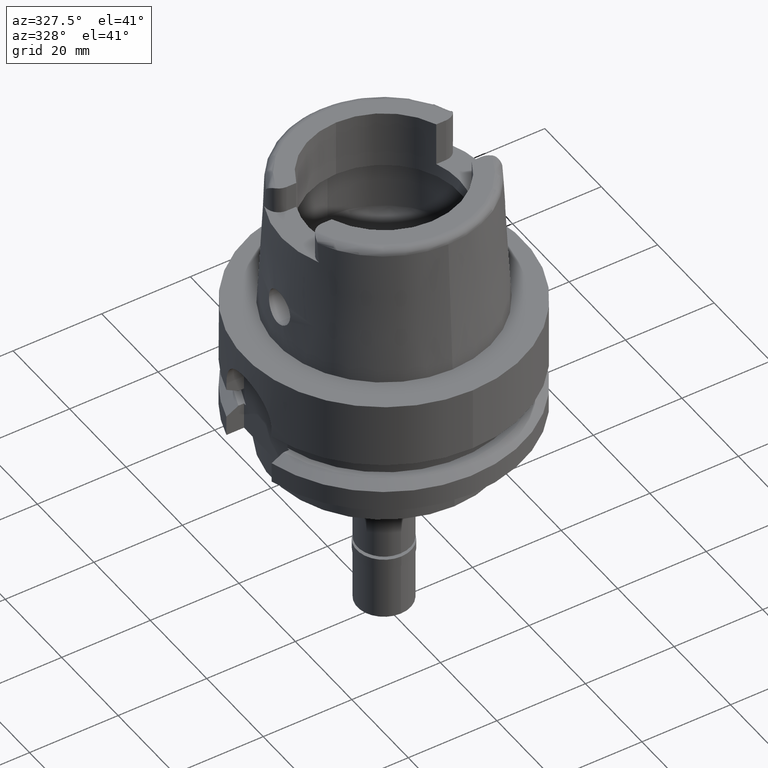
[diagram: clean part render]
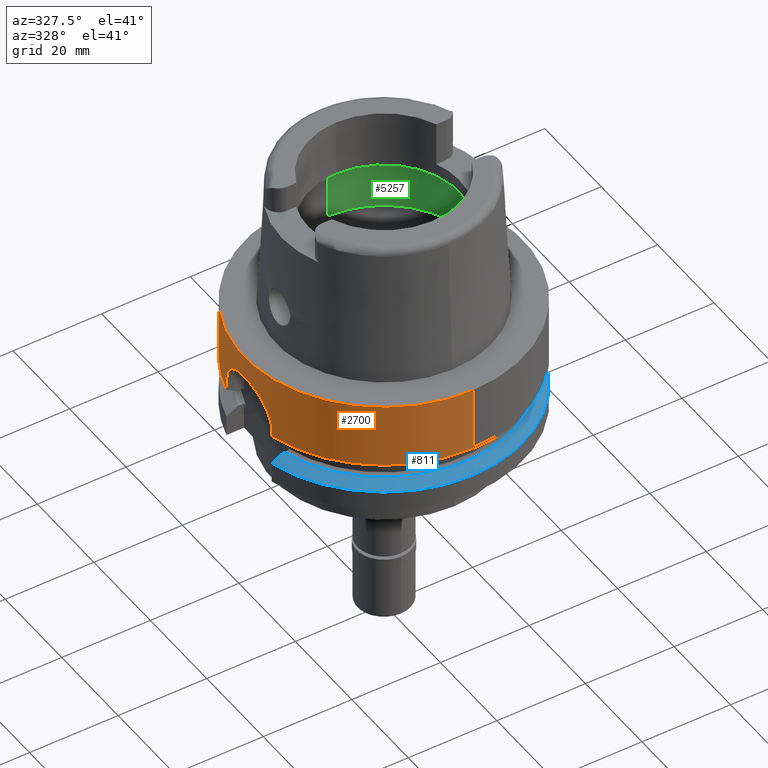
[diagram: same view with three faces highlighted in distinct colors, each labeled with its STEP entity id]
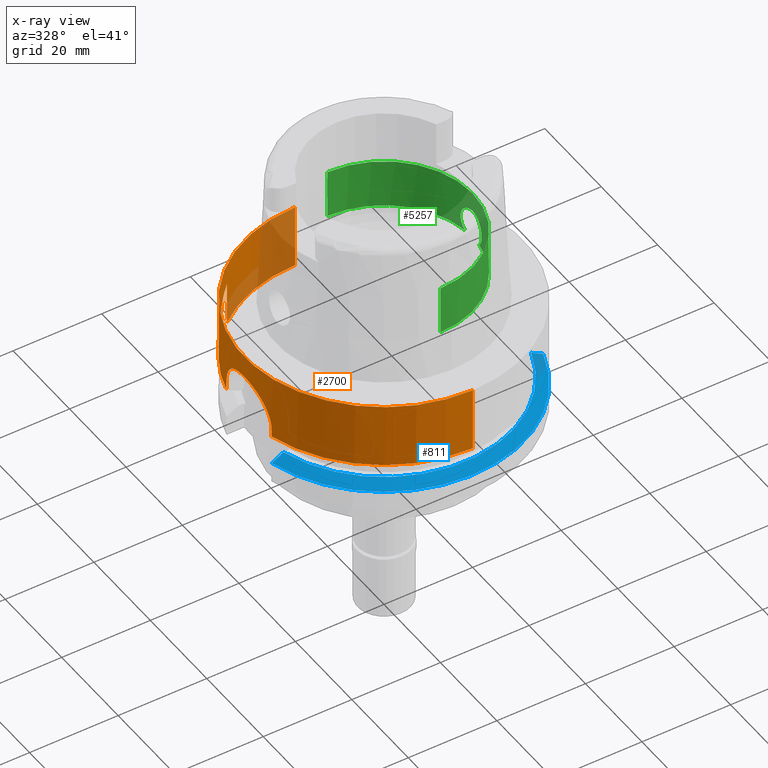
[diagram: x-ray of the same camera — body ghosted, the three highlighted faces saturated]
A machine part, auxiliary view with three faces highlighted in distinct colors.
The next image is the same camera in x-ray (body ghosted, the three faces saturated) — at least one of them is partly hidden behind the body in this view.
Their STEP definitions:

[orange] entity #2700 — the highlighted cylindrical surface (partial cylindrical patch) has radius 31.5 mm, axis along (0, 0, 1).
#8 = CARTESIAN_POINT ( 'NONE',  ( -20.00000000000000000, 24.33618704727589588, -76.14999999999999147 ) ) ;
#14 = CARTESIAN_POINT ( 'NONE',  ( -31.44966230151018749, 1.798303295826769288, -5.200421216196067675 ) ) ;
#41 = CARTESIAN_POINT ( 'NONE',  ( -30.64173941621190522, -7.303713809217343922, -9.725163778854621910 ) ) ;
#42 = VECTOR ( 'NONE', #1308, 1000.000000000000000 ) ;
#49 = LINE ( 'NONE', #1253, #2483 ) ;
#86 = DIRECTION ( 'NONE',  ( 0.0000000000000000000, 0.0000000000000000000, -1.000000000000000000 ) ) ;
#89 = AXIS2_PLACEMENT_3D ( 'NONE', #4944, #4538, #4511 ) ;
#184 = CARTESIAN_POINT ( 'NONE',  ( -22.22170050880115610, 22.32599005203464060, -6.471754504964832400 ) ) ;
#202 = DIRECTION ( 'NONE',  ( 0.0000000000000000000, 0.0000000000000000000, 1.000000000000000000 ) ) ;
#304 = CARTESIAN_POINT ( 'NONE',  ( 0.0000000000000000000, 0.0000000000000000000, -14.62250092523999889 ) ) ;
#374 = CARTESIAN_POINT ( 'NONE',  ( 0.0000000000000000000, -31.50000000000000000, -14.62250092523999889 ) ) ;
#395 = CARTESIAN_POINT ( 'NONE',  ( -30.75521154237461374, -6.810977657219795312, -8.795226142272326797 ) ) ;
#408 = CARTESIAN_POINT ( 'NONE',  ( 0.0000000000000000000, 31.50000000000000000, -1.894780628694000185E-14 ) ) ;
#423 = CARTESIAN_POINT ( 'NONE',  ( -31.02187905824328951, 5.470773078845158288, -7.156983224162666524 ) ) ;
#449 = CARTESIAN_POINT ( 'NONE',  ( -30.57221971732558430, -7.589156829333943755, -10.45567397423516987 ) ) ;
#475 = CARTESIAN_POINT ( 'NONE',  ( -31.15515490540210308, -4.653652310241341183, -6.487463031424502091 ) ) ;
#480 = CARTESIAN_POINT ( 'NONE',  ( -22.12491229744317778, 22.42182884765117024, -6.377245127194153262 ) ) ;
#495 = DIRECTION ( 'NONE',  ( -0.7725773665802099233, 0.6349206349206079070, 0.0000000000000000000 ) ) ;
#508 = CARTESIAN_POINT ( 'NONE',  ( -24.17251238106492650, 20.19755147336475432, -10.34113836718697321 ) ) ;
#532 = CARTESIAN_POINT ( 'NONE',  ( -23.23366085135468140, 21.27231129298057510, -7.766591567163299459 ) ) ;
#584 = CARTESIAN_POINT ( 'NONE',  ( -24.26109616098778332, 20.09111896876528647, -10.89520886242261000 ) ) ;
#607 = CIRCLE ( 'NONE', #4480, 31.50000000000000000 ) ;
#730 = EDGE_CURVE ( 'NONE', #1863, #1753, #796, .T. ) ;
#762 = EDGE_CURVE ( 'NONE', #4418, #4334, #5271, .T. ) ;
#780 = CARTESIAN_POINT ( 'NONE',  ( -31.20241979553625811, -4.321057527293621803, -6.266097809128803320 ) ) ;
#796 = LINE ( 'NONE', #408, #4132 ) ;
#812 = CARTESIAN_POINT ( 'NONE',  ( -31.49677498113517160, -0.5190877987548621064, -5.012592344104597863 ) ) ;
#839 = CARTESIAN_POINT ( 'NONE',  ( -31.34136433185333459, 3.159692181581852832, -5.649299289358794773 ) ) ;
#867 = CARTESIAN_POINT ( 'NONE',  ( -31.05571262836400592, -5.275953008270611200, -6.980406633609650413 ) ) ;
#896 = CARTESIAN_POINT ( 'NONE',  ( -30.66617644347384442, 7.202627032300179089, -9.478632536696894206 ) ) ;
#931 = CARTESIAN_POINT ( 'NONE',  ( -21.51836710721181234, 23.01946364846037341, -5.799114104701471817 ) ) ;
#934 = CARTESIAN_POINT ( 'NONE',  ( -30.59375340777661023, 7.502186739966537843, -10.20961238158549023 ) ) ;
#940 = EDGE_CURVE ( 'NONE', #2292, #1677, #3829, .T. ) ;
#977 = DIRECTION ( 'NONE',  ( 0.0000000000000000000, -1.000000000000000000, 0.0000000000000000000 ) ) ;
#990 = CARTESIAN_POINT ( 'NONE',  ( -20.81550051534737023, 23.66599124893452810, -5.345271488717822095 ) ) ;
#991 = ORIENTED_EDGE ( 'NONE', *, *, #2149, .T. ) ;
#1014 = CARTESIAN_POINT ( 'NONE',  ( -24.19539163548208549, 20.17013717307482779, -10.46830947213838137 ) ) ;
#1086 = CARTESIAN_POINT ( 'NONE',  ( -20.00000000000000000, 24.33618704727999926, -5.000000000001000089 ) ) ;
#1101 = ORIENTED_EDGE ( 'NONE', *, *, #940, .F. ) ;
#1115 = EDGE_CURVE ( 'NONE', #1564, #1863, #607, .T. ) ;
#1227 = CARTESIAN_POINT ( 'NONE',  ( 0.0000000000000000000, -31.50000000000000000, -1.894780628694000185E-14 ) ) ;
#1246 = CARTESIAN_POINT ( 'NONE',  ( -30.72496428720113215, -6.945683049940167386, -9.021600275635513810 ) ) ;
#1253 = CARTESIAN_POINT ( 'NONE',  ( -30.46719547316000032, 8.000000000000000000, -13.00000000000000000 ) ) ;
#1256 = LINE ( 'NONE', #1227, #42 ) ;
#1272 = DIRECTION ( 'NONE',  ( 9.894060569838856819E-07, 1.203919407603981730E-06, 0.9999999999987858601 ) ) ;
#1299 = CARTESIAN_POINT ( 'NONE',  ( -30.91893338653462564, 6.024844494657775940, -7.730123708901328605 ) ) ;
#1303 = EDGE_CURVE ( 'NONE', #4510, #2861, #3686, .T. ) ;
#1308 = DIRECTION ( 'NONE',  ( 0.0000000000000000000, -2.672583210396999878E-14, -1.000000000000000000 ) ) ;
#1341 = ORIENTED_EDGE ( 'NONE', *, *, #1115, .T. ) ;
#1349 = ORIENTED_EDGE ( 'NONE', *, *, #762, .T. ) ;
#1350 = DIRECTION ( 'NONE',  ( 0.0000000000000000000, 0.0000000000000000000, 1.000000000000000000 ) ) ;
#1365 = CARTESIAN_POINT ( 'NONE',  ( -30.46719547316000032, 8.000000000000000000, -13.00000000000000000 ) ) ;
#1388 = CARTESIAN_POINT ( 'NONE',  ( -22.60291729444561781, 21.94057589840626576, -6.885214217705590833 ) ) ;
#1469 = CARTESIAN_POINT ( 'NONE',  ( -23.47202326876852041, 21.00752253730253472, -8.224737355040758757 ) ) ;
#1471 = ORIENTED_EDGE ( 'NONE', *, *, #4185, .F. ) ;
#1476 = CARTESIAN_POINT ( 'NONE',  ( 0.0000000000000000000, -31.50000000000000000, 1.421085471519999843E-14 ) ) ;
#1497 = CARTESIAN_POINT ( 'NONE',  ( -30.46719547316000032, 8.000000000000000000, -13.00000000000000000 ) ) ;
#1512 = CARTESIAN_POINT ( 'NONE',  ( -30.46719534897000159, -8.000000472989999167, -14.62249663149000156 ) ) ;
#1564 = VERTEX_POINT ( 'NONE', #1476 ) ;
#1639 = CARTESIAN_POINT ( 'NONE',  ( -30.53478132457299665, -7.738413873990360514, -10.95404076902264201 ) ) ;
#1665 = CARTESIAN_POINT ( 'NONE',  ( -31.39671494537560292, -2.551760249622201826, -5.416713587691485365 ) ) ;
#1677 = VERTEX_POINT ( 'NONE', #2973 ) ;
#1693 = CARTESIAN_POINT ( 'NONE',  ( -30.59373676539953024, -7.502246369416812222, -10.20989857620156549 ) ) ;
#1723 = CARTESIAN_POINT ( 'NONE',  ( -31.47467690399552964, -1.288642814322514152, -5.100161920001413662 ) ) ;
#1748 = CARTESIAN_POINT ( 'NONE',  ( -30.48036050189218216, -7.950356871973275119, -11.97071498079076157 ) ) ;
#1753 = VERTEX_POINT ( 'NONE', #3424 ) ;
#1782 = CARTESIAN_POINT ( 'NONE',  ( -24.23763025902146495, 20.11942903129526883, -10.72365004949240408 ) ) ;
#1787 = CARTESIAN_POINT ( 'NONE',  ( -30.49311703359753523, 7.900790855816344660, -11.71738148933184931 ) ) ;
#1863 = VERTEX_POINT ( 'NONE', #4712 ) ;
#1865 = CARTESIAN_POINT ( 'NONE',  ( -23.42378172376663059, 21.06126184846387872, -8.129957077532985465 ) ) ;
#1893 = CARTESIAN_POINT ( 'NONE',  ( -22.42393665110885337, 22.12295987468458947, -6.683212340797858531 ) ) ;
#1917 = EDGE_CURVE ( 'NONE', #2125, #5548, #3917, .T. ) ;
#2008 = CYLINDRICAL_SURFACE ( 'NONE', #89, 31.50000000000000000 ) ;
#2088 = CARTESIAN_POINT ( 'NONE',  ( -31.32884522479364264, 3.281432419640696541, -5.702786143405102592 ) ) ;
#2114 = CARTESIAN_POINT ( 'NONE',  ( -31.37653924856421384, 2.796761741833156734, -5.500262343884695149 ) ) ;
#2122 = DIRECTION ( 'NONE',  ( -1.695820278486991419E-08, -6.457932511157964995E-08, -0.9999999999999978906 ) ) ;
#2125 = VERTEX_POINT ( 'NONE', #4444 ) ;
#2142 = CARTESIAN_POINT ( 'NONE',  ( -31.15505801267154595, 4.650160006335833707, -6.489012830893226003 ) ) ;
#2149 = EDGE_CURVE ( 'NONE', #2125, #2789, #5027, .T. ) ;
#2169 = CARTESIAN_POINT ( 'NONE',  ( -30.46719547316000032, -8.000000000000000000, -13.00000000000000000 ) ) ;
#2198 = CARTESIAN_POINT ( 'NONE',  ( -30.85032094694764382, -6.371617700691307284, -8.133432757228431953 ) ) ;
#2203 = CARTESIAN_POINT ( 'NONE',  ( -24.33618704727999926, 20.00000000000000000, -12.11171390365999834 ) ) ;
#2233 = CARTESIAN_POINT ( 'NONE',  ( -20.00000000000000000, 24.33618704727999926, -5.000000000001000089 ) ) ;
#2234 = VECTOR ( 'NONE', #5072, 1000.000000000000000 ) ;
#2292 = VERTEX_POINT ( 'NONE', #1086 ) ;
#2313 = CARTESIAN_POINT ( 'NONE',  ( -23.44317165884715592, 21.03967991147673899, -8.167804824676128561 ) ) ;
#2446 = DIRECTION ( 'NONE',  ( -0.9672125547036138915, -0.2539682539683034701, 0.0000000000000000000 ) ) ;
#2483 = VECTOR ( 'NONE', #2122, 999.9999999999998863 ) ;
#2510 = CARTESIAN_POINT ( 'NONE',  ( -31.21750877597827056, -4.210714091329342601, -6.196544939674746288 ) ) ;
#2537 = CARTESIAN_POINT ( 'NONE',  ( -31.10597518892846480, 4.967801608295438598, -6.727898284169169685 ) ) ;
#2564 = CARTESIAN_POINT ( 'NONE',  ( -31.42616245213797299, -2.180633058273694580, -5.295127838465315762 ) ) ;
#2597 = CARTESIAN_POINT ( 'NONE',  ( -30.85175720740581440, 6.359895452053936360, -8.139646238710053439 ) ) ;
#2618 = CARTESIAN_POINT ( 'NONE',  ( 0.0000000000000000000, 0.0000000000000000000, 1.421085471519999843E-14 ) ) ;
#2625 = CARTESIAN_POINT ( 'NONE',  ( -30.95339521520650905, 5.845824410271075244, -7.532364491997734390 ) ) ;
#2632 = CARTESIAN_POINT ( 'NONE',  ( -23.04044880233925241, 21.48226169413714004, -7.458314647654957774 ) ) ;
#2663 = CARTESIAN_POINT ( 'NONE',  ( -30.47046940356813849, 7.987562579235286897, -12.48389672851284082 ) ) ;
#2670 = ORIENTED_EDGE ( 'NONE', *, *, #4320, .F. ) ;
#2694 = AXIS2_PLACEMENT_3D ( 'NONE', #4723, #1350, #3405 ) ;
#2700 = ADVANCED_FACE ( 'NONE', ( #3218 ), #2008, .T. ) ;
#2789 = VERTEX_POINT ( 'NONE', #5555 ) ;
#2852 = ORIENTED_EDGE ( 'NONE', *, *, #1303, .T. ) ;
#2861 = VERTEX_POINT ( 'NONE', #374 ) ;
#2870 = ORIENTED_EDGE ( 'NONE', *, *, #1917, .F. ) ;
#2933 = CARTESIAN_POINT ( 'NONE',  ( -30.46719547316398291, -8.000000000001028511, -12.48317112682726382 ) ) ;
#2964 = CARTESIAN_POINT ( 'NONE',  ( -31.21807092385048676, 4.210852402492448299, -6.192810700885029718 ) ) ;
#2973 = CARTESIAN_POINT ( 'NONE',  ( -20.00001377493000021, 24.33617572673000140, -14.62245154170999939 ) ) ;
#2991 = B_SPLINE_CURVE_WITH_KNOTS ( 'NONE', 3,
 ( #2203, #3595, #4407, #584, #1782, #1014, #508, #4908, #4821, #3565, #3137, #5274, #4793, #3540, #5223, #3079, #1469, #2313, #1865, #4880, #532, #2632, #4043, #1388, #1893, #3927, #184, #4354, #3109, #480, #3625, #931, #990, #2233 ),
 .UNSPECIFIED., .F., .F.,
 ( 4, 2, 2, 1, 2, 2, 2, 2, 1, 1, 2, 2, 2, 2, 1, 1, 1, 2, 2, 4 ),
 ( 0.0000000000000000000, 0.1250000000000032196, 0.1875000000000052180, 0.2187500000000060785, 0.2343750000000063838, 0.2500000000000066613, 0.3750000000000099920, 0.4375000000000116573, 0.4687500000000127676, 0.4843750000000133227, 0.4921875000000135447, 0.5000000000000137668, 0.6250000000000152101, 0.6875000000000156541, 0.7187500000000163203, 0.7343750000000163203, 0.7421875000000157652, 0.7460937500000155431, 0.7500000000000153211, 1.000000000000000000 ),
 .UNSPECIFIED. ) ;
#2992 = CARTESIAN_POINT ( 'NONE',  ( -30.72362743262493012, 6.956923362947528666, -9.014860882631909433 ) ) ;
#3014 = CARTESIAN_POINT ( 'NONE',  ( -31.28954084416918491, 3.637070280330017447, -5.873293663025584088 ) ) ;
#3042 = CARTESIAN_POINT ( 'NONE',  ( -31.50001432302335758, 0.5184478547427621153, -4.999946921187955695 ) ) ;
#3079 = CARTESIAN_POINT ( 'NONE',  ( -23.53771064302240035, 20.93400983489148004, -8.358695770585502061 ) ) ;
#3085 = CARTESIAN_POINT ( 'NONE',  ( -30.57233717797020844, 7.588684322516561664, -10.45425618826397063 ) ) ;
#3109 = CARTESIAN_POINT ( 'NONE',  ( -22.14115827318642360, 22.40578701210981549, -6.392893518363817584 ) ) ;
#3137 = CARTESIAN_POINT ( 'NONE',  ( -24.03293702703588508, 20.36377995902324756, -9.699793441030417185 ) ) ;
#3178 = EDGE_CURVE ( 'NONE', #1753, #1677, #3769, .T. ) ;
#3199 = LINE ( 'NONE', #1512, #3600 ) ;
#3218 = FACE_OUTER_BOUND ( 'NONE', #5492, .T. ) ;
#3305 = VECTOR ( 'NONE', #1272, 1000.000000000000000 ) ;
#3354 = CARTESIAN_POINT ( 'NONE',  ( -30.51876128852104486, -7.801143960569506319, -11.20858985244036354 ) ) ;
#3357 = EDGE_CURVE ( 'NONE', #4510, #4334, #3199, .T. ) ;
#3382 = CARTESIAN_POINT ( 'NONE',  ( -31.48408220224461473, -1.033854069674182252, -5.062799221716558939 ) ) ;
#3405 = DIRECTION ( 'NONE',  ( 0.0000000000000000000, 1.000000000000000000, 0.0000000000000000000 ) ) ;
#3424 = CARTESIAN_POINT ( 'NONE',  ( 0.0000000000000000000, 31.50000000000000000, -14.62250092523999889 ) ) ;
#3444 = CARTESIAN_POINT ( 'NONE',  ( -31.30329595391356179, -3.522533039538819022, -5.812390806476858351 ) ) ;
#3447 = ORIENTED_EDGE ( 'NONE', *, *, #730, .T. ) ;
#3469 = CARTESIAN_POINT ( 'NONE',  ( -31.12245666178021253, -4.866791380018239188, -6.645082477807048527 ) ) ;
#3517 = CARTESIAN_POINT ( 'NONE',  ( -30.51893367472919749, 7.800472417072452203, -11.20535282272372690 ) ) ;
#3540 = CARTESIAN_POINT ( 'NONE',  ( -23.69448981359079553, 20.75657293751336852, -8.711189346680543011 ) ) ;
#3565 = CARTESIAN_POINT ( 'NONE',  ( -24.12066155857428029, 20.25941267111032218, -10.09049476243939303 ) ) ;
#3595 = CARTESIAN_POINT ( 'NONE',  ( -24.33618704728001347, 20.00000000000001421, -11.76178669760036755 ) ) ;
#3600 = VECTOR ( 'NONE', #5317, 1000.000000000000114 ) ;
#3625 = CARTESIAN_POINT ( 'NONE',  ( -22.11782216103680909, 22.42882346854284137, -6.370446457869513246 ) ) ;
#3686 = CIRCLE ( 'NONE', #4665, 31.50000000000000000 ) ;
#3719 = ORIENTED_EDGE ( 'NONE', *, *, #3178, .T. ) ;
#3769 = CIRCLE ( 'NONE', #2694, 31.50000000000000000 ) ;
#3809 = CARTESIAN_POINT ( 'NONE',  ( -31.48718089941689158, 1.033466738044623190, -5.050045406864859920 ) ) ;
#3829 = LINE ( 'NONE', #8, #2234 ) ;
#3835 = CARTESIAN_POINT ( 'NONE',  ( -31.30298909983558175, 3.519547592989540785, -5.814547669720093737 ) ) ;
#3848 = DIRECTION ( 'NONE',  ( 0.0000000000000000000, 2.672583210396999878E-14, -1.000000000000000000 ) ) ;
#3866 = CARTESIAN_POINT ( 'NONE',  ( -31.32926139477864425, -3.284444874349291332, -5.700584946594626778 ) ) ;
#3896 = CARTESIAN_POINT ( 'NONE',  ( -31.02184410210504240, -5.471005260744992604, -7.157139546626337889 ) ) ;
#3917 = LINE ( 'NONE', #5128, #3305 ) ;
#3921 = CARTESIAN_POINT ( 'NONE',  ( -31.43404328909792866, 2.052651585325679040, -5.263364878262040136 ) ) ;
#3927 = CARTESIAN_POINT ( 'NONE',  ( -22.33231685402952138, 22.21558083527973437, -6.584082957457114915 ) ) ;
#3985 = CARTESIAN_POINT ( 'NONE',  ( -30.46719547316000032, -8.000000000000000000, -13.00000000000000000 ) ) ;
#3986 = CARTESIAN_POINT ( 'NONE',  ( -24.33618704727999926, 20.00000000000000000, -12.11171390365999834 ) ) ;
#4030 = CARTESIAN_POINT ( 'NONE',  ( 0.0000000000000000000, 0.0000000000000000000, -14.62250092523999889 ) ) ;
#4043 = CARTESIAN_POINT ( 'NONE',  ( -22.71655912224093399, 21.82279715023530642, -7.024875566565537355 ) ) ;
#4132 = VECTOR ( 'NONE', #3848, 1000.000000000000000 ) ;
#4185 = EDGE_CURVE ( 'NONE', #4418, #2789, #49, .T. ) ;
#4266 = CARTESIAN_POINT ( 'NONE',  ( -31.24713637113113762, -3.984900995148348724, -6.061804231062538406 ) ) ;
#4292 = CARTESIAN_POINT ( 'NONE',  ( -31.36478182114308666, -2.918134803405133759, -5.550077293318774529 ) ) ;
#4320 = EDGE_CURVE ( 'NONE', #5548, #2292, #2991, .T. ) ;
#4322 = CARTESIAN_POINT ( 'NONE',  ( -31.37578600937742479, -2.797363406223615456, -5.503890351294933758 ) ) ;
#4334 = VERTEX_POINT ( 'NONE', #3985 ) ;
#4348 = CARTESIAN_POINT ( 'NONE',  ( -31.17125952987655424, 4.540361974734397954, -6.412027133021474867 ) ) ;
#4354 = CARTESIAN_POINT ( 'NONE',  ( -22.16546069069467606, 22.38176392649350532, -6.416426069915085684 ) ) ;
#4366 = DIRECTION ( 'NONE',  ( 0.0000000000000000000, 0.0000000000000000000, 1.000000000000000000 ) ) ;
#4381 = CARTESIAN_POINT ( 'NONE',  ( -30.48347368593274709, 7.937788966080352004, -11.97101911385543715 ) ) ;
#4407 = CARTESIAN_POINT ( 'NONE',  ( -24.31741432570694172, 20.02299121550742456, -11.41281077843464331 ) ) ;
#4418 = VERTEX_POINT ( 'NONE', #1497 ) ;
#4444 = CARTESIAN_POINT ( 'NONE',  ( -24.33618953147999875, 19.99999697720000214, -14.62251175989000096 ) ) ;
#4480 = AXIS2_PLACEMENT_3D ( 'NONE', #2618, #86, #977 ) ;
#4492 = ORIENTED_EDGE ( 'NONE', *, *, #5403, .F. ) ;
#4510 = VERTEX_POINT ( 'NONE', #5160 ) ;
#4511 = DIRECTION ( 'NONE',  ( 0.0000000000000000000, 1.000000000000000000, 0.0000000000000000000 ) ) ;
#4538 = DIRECTION ( 'NONE',  ( 0.0000000000000000000, 0.0000000000000000000, 1.000000000000000000 ) ) ;
#4569 = AXIS2_PLACEMENT_3D ( 'NONE', #4030, #4366, #495 ) ;
#4645 = CARTESIAN_POINT ( 'NONE',  ( -31.05592142090470986, 5.274725186496311835, -6.979328001445211704 ) ) ;
#4665 = AXIS2_PLACEMENT_3D ( 'NONE', #304, #202, #2446 ) ;
#4677 = CARTESIAN_POINT ( 'NONE',  ( -31.44949717071799355, -1.801392301197995760, -5.201080277776201299 ) ) ;
#4701 = CARTESIAN_POINT ( 'NONE',  ( -30.81885633634704647, 6.516947939316975358, -8.352431729943624816 ) ) ;
#4712 = CARTESIAN_POINT ( 'NONE',  ( 0.0000000000000000000, 31.50000000000000000, -1.894780628694000185E-14 ) ) ;
#4723 = CARTESIAN_POINT ( 'NONE',  ( 0.0000000000000000000, 0.0000000000000000000, -14.62250092523999889 ) ) ;
#4732 = CARTESIAN_POINT ( 'NONE',  ( -31.39751812030706191, 2.551139336965592808, -5.413139665300412240 ) ) ;
#4793 = CARTESIAN_POINT ( 'NONE',  ( -23.75836304887993577, 20.68338302311897436, -8.871588078641323705 ) ) ;
#4798 = CARTESIAN_POINT ( 'NONE',  ( -30.46719547316397225, 8.000000000001037392, -12.74141075478479657 ) ) ;
#4821 = CARTESIAN_POINT ( 'NONE',  ( -24.12939378620182040, 20.24901020214436187, -10.13079694293886668 ) ) ;
#4880 = CARTESIAN_POINT ( 'NONE',  ( -23.41481459877616800, 21.07123043680089580, -8.112625686035599415 ) ) ;
#4908 = CARTESIAN_POINT ( 'NONE',  ( -24.14699321267654497, 20.22802173336171450, -10.21481415021040462 ) ) ;
#4944 = CARTESIAN_POINT ( 'NONE',  ( 0.0000000000000000000, 0.0000000000000000000, -76.14999999999999147 ) ) ;
#5027 = CIRCLE ( 'NONE', #4569, 31.50000000000000711 ) ;
#5072 = DIRECTION ( 'NONE',  ( -0.0000000000000000000, -0.0000000000000000000, -1.000000000000000000 ) ) ;
#5103 = CARTESIAN_POINT ( 'NONE',  ( -31.26152886782687546, -3.870459532699298322, -5.997300732847682170 ) ) ;
#5128 = CARTESIAN_POINT ( 'NONE',  ( -24.33618953147999875, 19.99999697720000214, -14.62251175989000096 ) ) ;
#5132 = CARTESIAN_POINT ( 'NONE',  ( -30.91857265969240842, -6.036448038454227394, -7.723296958652833055 ) ) ;
#5159 = CARTESIAN_POINT ( 'NONE',  ( -31.24778610015542668, 3.985028191983318813, -6.058127333386055469 ) ) ;
#5160 = CARTESIAN_POINT ( 'NONE',  ( -30.46719534897000159, -8.000000472989999167, -14.62249663149000156 ) ) ;
#5185 = CARTESIAN_POINT ( 'NONE',  ( -31.12249083192365262, 4.863351958709388079, -6.646597231210504830 ) ) ;
#5223 = CARTESIAN_POINT ( 'NONE',  ( -23.59121459427546696, 20.87364920017294523, -8.475393648807528990 ) ) ;
#5225 = CARTESIAN_POINT ( 'NONE',  ( -30.53486775665135156, 7.738073491129538795, -10.95272776251014335 ) ) ;
#5271 = B_SPLINE_CURVE_WITH_KNOTS ( 'NONE', 3,
 ( #1365, #4798, #2663, #4381, #1787, #3517, #5225, #3085, #934, #896, #2992, #4701, #2597, #1299, #2625, #423, #4645, #2537, #5185, #2142, #4348, #2964, #5159, #3014, #3835, #2088, #839, #2114, #4732, #3921, #14, #3809, #3042, #5517, #812, #3382, #1723, #4677, #2564, #1665, #4322, #4292, #3866, #3444, #5103, #4266, #2510, #780, #475, #3469, #867, #3896, #5132, #2198, #395, #1246, #5545, #41, #1693, #449, #1639, #3354, #1748, #2933, #2169 ),
 .UNSPECIFIED., .F., .F.,
 ( 4, 2, 2, 2, 2, 2, 2, 2, 2, 2, 2, 2, 2, 2, 2, 2, 2, 2, 2, 1, 2, 2, 2, 2, 2, 2, 2, 2, 2, 2, 2, 2, 4 ),
 ( 0.0000000000000000000, 0.03125000000000023592, 0.06250000000000047184, 0.09375000000000074940, 0.1250000000000010270, 0.1875000000000015266, 0.2187500000000018041, 0.2500000000000019429, 0.2812500000000021094, 0.2968750000000021649, 0.3125000000000022204, 0.3437500000000023870, 0.3593750000000024425, 0.3750000000000024980, 0.4062500000000025535, 0.4375000000000026090, 0.5000000000000027756, 0.5312500000000027756, 0.5625000000000027756, 0.5937500000000027756, 0.6093750000000027756, 0.6250000000000027756, 0.6562500000000027756, 0.6718750000000026645, 0.6875000000000025535, 0.7187500000000023315, 0.7500000000000021094, 0.8125000000000017764, 0.8437500000000014433, 0.8750000000000011102, 0.9062500000000008882, 0.9375000000000005551, 1.000000000000000000 ),
 .UNSPECIFIED. ) ;
#5274 = CARTESIAN_POINT ( 'NONE',  ( -23.93505202198409521, 20.47925592437123399, -9.361512830603542668 ) ) ;
#5317 = DIRECTION ( 'NONE',  ( -7.654543230729645300E-08, 2.915198486954868783E-07, 0.9999999999999544809 ) ) ;
#5340 = ORIENTED_EDGE ( 'NONE', *, *, #3357, .F. ) ;
#5403 = EDGE_CURVE ( 'NONE', #1564, #2861, #1256, .T. ) ;
#5492 = EDGE_LOOP ( 'NONE', ( #2670, #2870, #991, #1471, #1349, #5340, #2852, #4492, #1341, #3447, #3719, #1101 ) ) ;
#5517 = CARTESIAN_POINT ( 'NONE',  ( -31.49999282048705851, -0.2605281970432911098, -5.000027238485366787 ) ) ;
#5545 = CARTESIAN_POINT ( 'NONE',  ( -30.66829439182306061, -7.191777428180417431, -9.485901219058975542 ) ) ;
#5548 = VERTEX_POINT ( 'NONE', #3986 ) ;
#5555 = CARTESIAN_POINT ( 'NONE',  ( -30.46719547317000121, 8.000000000001000089, -14.62250092523999889 ) ) ;

[blue] entity #811 — the highlighted conical surface has half-angle 60 deg.
#78 = CARTESIAN_POINT ( 'NONE',  ( 27.46036361392999936, -8.999999267112000823, -19.87500000000000000 ) ) ;
#157 = B_SPLINE_CURVE_WITH_KNOTS ( 'NONE', 3,
 ( #2492, #1680, #4689, #2549 ),
 .UNSPECIFIED., .F., .F.,
 ( 4, 4 ),
 ( 0.0000000000000000000, 1.000000000000000000 ),
 .UNSPECIFIED. ) ;
#237 = CARTESIAN_POINT ( 'NONE',  ( 27.46036361392999936, -8.999999267112000823, -19.87500000000000000 ) ) ;
#658 = VERTEX_POINT ( 'NONE', #2792 ) ;
#811 = ADVANCED_FACE ( 'NONE', ( #1036 ), #2956, .T. ) ;
#905 = CARTESIAN_POINT ( 'NONE',  ( 0.0000000000000000000, 0.0000000000000000000, -19.87500000000000000 ) ) ;
#1036 = FACE_OUTER_BOUND ( 'NONE', #2555, .T. ) ;
#1145 = CARTESIAN_POINT ( 'NONE',  ( -27.76816328263000244, -8.000000140837000728, -19.87500000000000000 ) ) ;
#1312 = CARTESIAN_POINT ( 'NONE',  ( 0.0000000000000000000, 0.0000000000000000000, -21.37749907476000288 ) ) ;
#1346 = CARTESIAN_POINT ( 'NONE',  ( 30.18691769625000276, -9.000000000000000000, -21.37749907476000288 ) ) ;
#1432 = B_SPLINE_CURVE_WITH_KNOTS ( 'NONE', 3,
 ( #2371, #1532, #4100, #237 ),
 .UNSPECIFIED., .F., .F.,
 ( 4, 4 ),
 ( 0.0000000000000000000, 1.000000000000000000 ),
 .UNSPECIFIED. ) ;
#1467 = AXIS2_PLACEMENT_3D ( 'NONE', #905, #2941, #5557 ) ;
#1508 = VERTEX_POINT ( 'NONE', #78 ) ;
#1532 = CARTESIAN_POINT ( 'NONE',  ( 29.24010040178018244, -8.999999702963652481, -20.85364079450861752 ) ) ;
#1680 = CARTESIAN_POINT ( 'NONE',  ( -28.63001147263682000, -8.000000281960280901, -20.35313945247611045 ) ) ;
#1805 = DIRECTION ( 'NONE',  ( 0.0000000000000000000, 0.0000000000000000000, -1.000000000000000000 ) ) ;
#2056 = AXIS2_PLACEMENT_3D ( 'NONE', #1312, #2581, #4717 ) ;
#2371 = CARTESIAN_POINT ( 'NONE',  ( 30.18691769625000276, -9.000000000000000000, -21.37749907476000288 ) ) ;
#2492 = CARTESIAN_POINT ( 'NONE',  ( -27.76816328263000244, -8.000000140837000728, -19.87500000000000000 ) ) ;
#2497 = EDGE_CURVE ( 'NONE', #3568, #658, #157, .T. ) ;
#2549 = CARTESIAN_POINT ( 'NONE',  ( -30.46719534897000159, -8.000000472983998634, -21.37750336861000378 ) ) ;
#2553 = ORIENTED_EDGE ( 'NONE', *, *, #2716, .T. ) ;
#2555 = EDGE_LOOP ( 'NONE', ( #2743, #4551, #2553, #3026 ) ) ;
#2581 = DIRECTION ( 'NONE',  ( 0.0000000000000000000, 0.0000000000000000000, -1.000000000000000000 ) ) ;
#2588 = EDGE_CURVE ( 'NONE', #3659, #658, #3764, .T. ) ;
#2716 = EDGE_CURVE ( 'NONE', #3659, #1508, #1432, .T. ) ;
#2743 = ORIENTED_EDGE ( 'NONE', *, *, #2497, .T. ) ;
#2792 = CARTESIAN_POINT ( 'NONE',  ( -30.46719534897000159, -8.000000472983998634, -21.37750336861000378 ) ) ;
#2941 = DIRECTION ( 'NONE',  ( 0.0000000000000000000, 0.0000000000000000000, -1.000000000000000000 ) ) ;
#2956 = CONICAL_SURFACE ( 'NONE', #5296, 30.19879763209999979, 1.047197551196400456 ) ;
#3026 = ORIENTED_EDGE ( 'NONE', *, *, #5410, .T. ) ;
#3568 = VERTEX_POINT ( 'NONE', #1145 ) ;
#3659 = VERTEX_POINT ( 'NONE', #1346 ) ;
#3764 = CIRCLE ( 'NONE', #2056, 31.49999999999999645 ) ;
#3993 = CIRCLE ( 'NONE', #1467, 28.89759526419000224 ) ;
#4100 = CARTESIAN_POINT ( 'NONE',  ( 28.33125881888274833, -8.999998532352179836, -20.35280922944874149 ) ) ;
#4399 = DIRECTION ( 'NONE',  ( 0.0000000000000000000, -1.000000000000000000, 0.0000000000000000000 ) ) ;
#4551 = ORIENTED_EDGE ( 'NONE', *, *, #2588, .F. ) ;
#4689 = CARTESIAN_POINT ( 'NONE',  ( -29.52968305537300253, -8.000000945654750950, -20.85397312918281898 ) ) ;
#4717 = DIRECTION ( 'NONE',  ( 0.9583148474999051425, -0.2857142857143015191, 0.0000000000000000000 ) ) ;
#5213 = CARTESIAN_POINT ( 'NONE',  ( 0.0000000000000000000, 0.0000000000000000000, -20.62624953738000144 ) ) ;
#5296 = AXIS2_PLACEMENT_3D ( 'NONE', #5213, #1805, #4399 ) ;
#5410 = EDGE_CURVE ( 'NONE', #1508, #3568, #3993, .T. ) ;
#5557 = DIRECTION ( 'NONE',  ( 0.0000000000000000000, -1.000000000000000000, 0.0000000000000000000 ) ) ;

[green] entity #5257 — the highlighted cylindrical surface (partial cylindrical patch) has radius 20 mm, axis along (0, 0, 1).
#75 = CARTESIAN_POINT ( 'NONE',  ( 19.85918872318426409, 2.369135875714347694, 11.90722451710354157 ) ) ;
#104 = CARTESIAN_POINT ( 'NONE',  ( 19.87229915841978567, 2.257465489885865928, 11.99589491200094926 ) ) ;
#129 = CARTESIAN_POINT ( 'NONE',  ( 19.78600833547956483, 2.918041537068009283, 11.35537825128686862 ) ) ;
#156 = CARTESIAN_POINT ( 'NONE',  ( 19.78201003247696477, 2.944853144045916693, 11.32172179265224443 ) ) ;
#182 = CARTESIAN_POINT ( 'NONE',  ( 19.75633028827533622, -3.113118158393215040, 11.09132631422932569 ) ) ;
#188 = CARTESIAN_POINT ( 'NONE',  ( 19.83468305774738383, 2.566201941565172451, 11.73443241550618765 ) ) ;
#200 = EDGE_CURVE ( 'NONE', #3338, #1786, #1091, .T. ) ;
#210 = CARTESIAN_POINT ( 'NONE',  ( 19.84575864665999845, -2.479085262491000030, 6.186348233825000875 ) ) ;
#214 = CARTESIAN_POINT ( 'NONE',  ( 19.79432804975139604, 2.867897626783015852, 6.576406876178388927 ) ) ;
#232 = CARTESIAN_POINT ( 'NONE',  ( 19.74412402014152335, -3.189287360231377821, 7.027396271955312024 ) ) ;
#258 = CARTESIAN_POINT ( 'NONE',  ( 19.76811802625652348, -3.040948222518159660, 6.803598181830732727 ) ) ;
#269 = CARTESIAN_POINT ( 'NONE',  ( 19.65028147489822530, 3.723953863416449739, 9.443597444031595955 ) ) ;
#291 = CARTESIAN_POINT ( 'NONE',  ( 19.75180675667556685, -3.142482012569179695, 6.953437250245475099 ) ) ;
#317 = CARTESIAN_POINT ( 'NONE',  ( 19.72033721075962731, 3.333562510895089037, 7.281762436847587949 ) ) ;
#339 = CARTESIAN_POINT ( 'NONE',  ( 19.88574383025204995, -2.134775223417160639, 12.08305965692082751 ) ) ;
#365 = CARTESIAN_POINT ( 'NONE',  ( 19.88365237359071713, -2.154170873041731049, 12.06956140496645880 ) ) ;
#422 = CARTESIAN_POINT ( 'NONE',  ( 19.94837310610448711, -1.436269470120637548, 12.46519377899367598 ) ) ;
#487 = B_SPLINE_CURVE_WITH_KNOTS ( 'NONE', 3,
 ( #2316, #2238, #4382, #2745, #1018, #4047, #4411, #5252, #4456, #4799, #962, #1391, #3113, #911, #3628, #2664, #537, #3932, #3569, #4358, #5280, #3168, #589, #104, #75, #1789, #4860, #3518, #3602, #1817, #2693, #188, #5227, #4826, #2264, #1896, #3989, #129, #1841, #156, #1871, #5307, #3142, #992, #1448, #4883, #1472, #4775, #4999, #5468, #4162, #4969, #5029, #618, #1586, #1079, #3191, #5391, #4130, #3705, #269, #2856, #5443, #2884, #4571, #3301, #2830, #4914, #646, #1558, #1048, #1169, #1951, #2460, #4485, #4600, #3754, #3679, #317, #737, #2346, #1106, #1503, #1983, #2037, #2776, #4073, #2802, #214, #3275, #4187 ),
 .UNSPECIFIED., .F., .F.,
 ( 4, 2, 2, 1, 1, 2, 2, 2, 2, 1, 1, 1, 2, 2, 2, 2, 1, 1, 1, 2, 2, 2, 2, 1, 1, 1, 1, 2, 2, 2, 2, 1, 1, 1, 2, 2, 2, 2, 2, 2, 2, 2, 1, 1, 2, 2, 2, 2, 1, 1, 1, 1, 2, 2, 2, 4 ),
 ( 0.0000000000000000000, 0.06250000000001888767, 0.09375000000002835232, 0.1093750000000329875, 0.1171875000000354022, 0.1210937500000365818, 0.1250000000000377476, 0.1875000000000573430, 0.2187500000000671130, 0.2343750000000721367, 0.2421875000000744682, 0.2460937500000755229, 0.2480468750000760225, 0.2500000000000764944, 0.2812500000000814349, 0.2968750000000838773, 0.3046875000000848766, 0.3085937500000854317, 0.3105468750000858202, 0.3115234375000858758, 0.3125000000000859313, 0.3437500000000842104, 0.3593750000000833777, 0.3671875000000828781, 0.3710937500000829337, 0.3730468750000832112, 0.3740234375000834333, 0.3745117187500835443, 0.3750000000000835998, 0.4375000000000716094, 0.4687500000000656142, 0.4843750000000627276, 0.4921875000000608957, 0.4960937500000597300, 0.4980468750000593969, 0.5000000000000590639, 0.5625000000000489608, 0.5937500000000441869, 0.6093750000000418554, 0.6250000000000394129, 0.6875000000000280886, 0.7187500000000220934, 0.7343750000000188738, 0.7421875000000172085, 0.7460937500000167644, 0.7500000000000162093, 0.8125000000000115463, 0.8437500000000092149, 0.8593750000000078826, 0.8671875000000071054, 0.8710937500000068834, 0.8730468750000066613, 0.8740234375000066613, 0.8750000000000066613, 0.9375000000000033307, 1.000000000000000000 ),
 .UNSPECIFIED. ) ;
#513 = AXIS2_PLACEMENT_3D ( 'NONE', #4894, #4869, #921 ) ;
#537 = CARTESIAN_POINT ( 'NONE',  ( 19.90224880527495088, 1.975459173801713542, 12.18821793894500161 ) ) ;
#582 = CARTESIAN_POINT ( 'NONE',  ( 19.74120982582817163, -3.207121259436097827, 7.056581690408222585 ) ) ;
#589 = CARTESIAN_POINT ( 'NONE',  ( 19.87992636294845994, 2.189100331231737862, 12.04562016321543361 ) ) ;
#614 = CARTESIAN_POINT ( 'NONE',  ( 19.68435608736334075, -3.539272090102640433, 10.23980035743771033 ) ) ;
#618 = CARTESIAN_POINT ( 'NONE',  ( 19.69074535043218788, 3.503512515209175060, 10.33713296391252889 ) ) ;
#641 = CARTESIAN_POINT ( 'NONE',  ( 19.77611933512980258, -2.984166890705810538, 11.27103051819913127 ) ) ;
#646 = CARTESIAN_POINT ( 'NONE',  ( 19.65657415197656022, 3.690621532260831561, 8.333628237660683169 ) ) ;
#663 = CARTESIAN_POINT ( 'NONE',  ( 0.0000000000000000000, 0.0000000000000000000, 17.26397459622000241 ) ) ;
#669 = CARTESIAN_POINT ( 'NONE',  ( 19.64604475034274600, -3.746176230145036090, 9.175139629578829670 ) ) ;
#673 = VERTEX_POINT ( 'NONE', #1459 ) ;
#701 = CARTESIAN_POINT ( 'NONE',  ( 19.73474750934648014, -3.247943588931955894, 10.87679522058854431 ) ) ;
#727 = CARTESIAN_POINT ( 'NONE',  ( 19.94209760931968489, -1.520832547283847980, 12.42907197225300209 ) ) ;
#737 = CARTESIAN_POINT ( 'NONE',  ( 19.72622503392256021, 3.298468145394587658, 7.214730009686497247 ) ) ;
#739 = DIRECTION ( 'NONE',  ( 0.0000000000000000000, 0.0000000000000000000, 1.000000000000000000 ) ) ;
#779 = CIRCLE ( 'NONE', #513, 20.00000000000001421 ) ;
#810 = CARTESIAN_POINT ( 'NONE',  ( 19.96807860057491268, -1.128666835356736176, 12.57613226101874915 ) ) ;
#838 = CARTESIAN_POINT ( 'NONE',  ( 19.87214938610299342, -2.257865066448530467, 11.99438280356341302 ) ) ;
#845 = CARTESIAN_POINT ( 'NONE',  ( 0.0000000000000000000, -20.00000000000000000, 17.26397459622000241 ) ) ;
#911 = CARTESIAN_POINT ( 'NONE',  ( 19.92823876427239682, 1.692969044958841041, 12.34743457434659142 ) ) ;
#921 = DIRECTION ( 'NONE',  ( 0.9922879323327794543, -0.1239542631244973381, 0.0000000000000000000 ) ) ;
#958 = AXIS2_PLACEMENT_3D ( 'NONE', #3756, #739, #4189 ) ;
#962 = CARTESIAN_POINT ( 'NONE',  ( 19.96967343750226220, 1.100259450378216375, 12.58497388513175785 ) ) ;
#992 = CARTESIAN_POINT ( 'NONE',  ( 19.78047630189863071, 2.955110119237844835, 11.30864127451138401 ) ) ;
#1018 = CARTESIAN_POINT ( 'NONE',  ( 19.98648931011648244, 0.7393096030928788531, 12.67763522028417711 ) ) ;
#1040 = CARTESIAN_POINT ( 'NONE',  ( 19.78023415325790069, -2.956725934689900637, 11.30657207826272703 ) ) ;
#1048 = CARTESIAN_POINT ( 'NONE',  ( 19.66228616516146488, 3.659909884267753100, 8.182349741264712151 ) ) ;
#1061 = VECTOR ( 'NONE', #2101, 1000.000000000000000 ) ;
#1072 = CARTESIAN_POINT ( 'NONE',  ( 19.67287751826947684, -3.602700685500680233, 7.957725986263052498 ) ) ;
#1079 = CARTESIAN_POINT ( 'NONE',  ( 19.68988494085293439, 3.508339169148604775, 10.32442221339303856 ) ) ;
#1091 = B_SPLINE_CURVE_WITH_KNOTS ( 'NONE', 3,
 ( #210, #2767, #3672, #258, #2851, #291, #1974, #4562, #232, #2311, #3647, #4531, #582, #2430, #4934, #5439, #1891, #2003, #1161, #1072, #3293, #3699, #1466, #4094, #4476, #4963, #5021, #4039, #2880, #4070, #3621, #669, #4154, #2797, #5412, #5329, #1579, #3723, #614, #5358, #4504, #2341, #1552, #1495, #3210, #701, #2823, #182, #1918, #3186, #641, #3269, #5383, #4905, #1040, #2366, #1946, #1525, #3243, #1100, #2396, #4121, #4991, #1128, #5491, #1610, #3352, #2139, #2059, #4208, #2563, #838, #3864, #4237, #365, #2931, #339, #1298, #1215, #5077, #727, #422, #2030, #3781, #2087, #4264, #810, #5130, #2990, #3412, #1637 ),
 .UNSPECIFIED., .F., .F.,
 ( 4, 2, 2, 2, 1, 1, 1, 2, 2, 2, 2, 1, 1, 2, 2, 2, 2, 2, 2, 2, 2, 1, 1, 1, 2, 2, 2, 2, 1, 1, 1, 1, 1, 2, 2, 2, 2, 2, 1, 1, 2, 2, 2, 2, 1, 1, 2, 2, 2, 2, 1, 1, 2, 2, 4 ),
 ( 0.0000000000000000000, 0.06249999999998019640, 0.09374999999997034317, 0.1093749999999656664, 0.1171874999999630990, 0.1210937499999616002, 0.1230468749999608508, 0.1240234374999602679, 0.1249999999999596989, 0.1874999999999369393, 0.2187499999999255873, 0.2343749999999197864, 0.2421874999999166223, 0.2460937499999153455, 0.2499999999999140410, 0.3124999999998926969, 0.3437499999998820943, 0.3593749999998767652, 0.3749999999998714362, 0.4374999999998488986, 0.4687499999998379074, 0.4843749999998324673, 0.4921874999998298028, 0.4960937499998280820, 0.4980468749998272493, 0.4999999999998264166, 0.5624999999997933875, 0.5937499999997768452, 0.6093749999997686295, 0.6171874999997645217, 0.6210937499997625233, 0.6230468749997614131, 0.6240234374997607469, 0.6245117187497606359, 0.6249999999997604139, 0.6562499999997793987, 0.6718749999997886135, 0.6796874999997932765, 0.6835937499997957190, 0.6855468749997968292, 0.6865234374997976063, 0.6874999999997982725, 0.7187499999998191447, 0.7343749999998294697, 0.7421874999998345768, 0.7460937499998369082, 0.7480468749998381295, 0.7499999999998393507, 0.8124999999998790967, 0.8437499999998990807, 0.8593749999999091838, 0.8671874999999142908, 0.8710937499999167333, 0.8749999999999191758, 1.000000000000000000 ),
 .UNSPECIFIED. ) ;
#1100 = CARTESIAN_POINT ( 'NONE',  ( 19.80862912889547900, -2.760965120668235961, 11.53839374913968463 ) ) ;
#1106 = CARTESIAN_POINT ( 'NONE',  ( 19.73725538096882559, 3.231422375636582522, 7.097184775011162294 ) ) ;
#1111 = ORIENTED_EDGE ( 'NONE', *, *, #2091, .T. ) ;
#1128 = CARTESIAN_POINT ( 'NONE',  ( 19.82796547769670070, -2.617705371106363810, 11.68527627420385429 ) ) ;
#1161 = CARTESIAN_POINT ( 'NONE',  ( 19.67639163043255124, -3.583602532670223439, 7.894426915708742776 ) ) ;
#1169 = CARTESIAN_POINT ( 'NONE',  ( 19.66378168726527775, 3.651842641535206990, 8.147540422229587520 ) ) ;
#1215 = CARTESIAN_POINT ( 'NONE',  ( 19.90522209985893554, -1.952741431928736615, 12.20844879091722568 ) ) ;
#1298 = CARTESIAN_POINT ( 'NONE',  ( 19.88597906681278715, -2.132588142816334464, 12.08457640606636296 ) ) ;
#1389 = DIRECTION ( 'NONE',  ( 0.0000000000000000000, 0.0000000000000000000, -1.000000000000000000 ) ) ;
#1391 = CARTESIAN_POINT ( 'NONE',  ( 19.96023819306153513, 1.269488554774792055, 12.53252095626478635 ) ) ;
#1448 = CARTESIAN_POINT ( 'NONE',  ( 19.78052877307859703, 2.954758969409855496, 11.30909125890383393 ) ) ;
#1459 = CARTESIAN_POINT ( 'NONE',  ( 0.0000000000000000000, 20.00000000000000000, 6.186348233825000875 ) ) ;
#1466 = CARTESIAN_POINT ( 'NONE',  ( 19.66672981917156093, -3.635923107584201119, 8.082026189123487470 ) ) ;
#1472 = CARTESIAN_POINT ( 'NONE',  ( 19.74216530814359416, 3.203551594148378534, 10.95850779254157814 ) ) ;
#1495 = CARTESIAN_POINT ( 'NONE',  ( 19.69950259244013324, -3.454385512224624755, 10.46780757835515807 ) ) ;
#1503 = CARTESIAN_POINT ( 'NONE',  ( 19.73915432685245719, 3.219769268246483129, 7.077589958022448613 ) ) ;
#1525 = CARTESIAN_POINT ( 'NONE',  ( 19.79006377211214129, -2.891356014853660561, 11.38989800283244236 ) ) ;
#1552 = CARTESIAN_POINT ( 'NONE',  ( 19.68932041673949840, -3.511505621640309549, 10.31599864275669809 ) ) ;
#1558 = CARTESIAN_POINT ( 'NONE',  ( 19.65901181671339515, 3.677543278341731892, 8.263705559650455612 ) ) ;
#1579 = CARTESIAN_POINT ( 'NONE',  ( 19.67545661115592992, -3.588576639619081909, 10.08946717317873976 ) ) ;
#1586 = CARTESIAN_POINT ( 'NONE',  ( 19.69011822034440229, 3.507030682201603078, 10.32787811997388694 ) ) ;
#1606 = VERTEX_POINT ( 'NONE', #4576 ) ;
#1610 = CARTESIAN_POINT ( 'NONE',  ( 19.83236004100830385, -2.584095461979537767, 11.71753071319663242 ) ) ;
#1637 = CARTESIAN_POINT ( 'NONE',  ( 20.00000000000000000, 0.0000000000000000000, 12.75000000000000000 ) ) ;
#1649 = CARTESIAN_POINT ( 'NONE',  ( 20.00000000000000000, 0.0000000000000000000, 12.75000000000000000 ) ) ;
#1711 = LINE ( 'NONE', #3849, #1061 ) ;
#1786 = VERTEX_POINT ( 'NONE', #1649 ) ;
#1789 = CARTESIAN_POINT ( 'NONE',  ( 19.85454030669867365, 2.407871476685101264, 11.87531647542940760 ) ) ;
#1816 = ORIENTED_EDGE ( 'NONE', *, *, #2072, .F. ) ;
#1817 = CARTESIAN_POINT ( 'NONE',  ( 19.83638243637337695, 2.553036319203252802, 11.74674278683433215 ) ) ;
#1841 = CARTESIAN_POINT ( 'NONE',  ( 19.78395345529935412, 2.931848823075644095, 11.33816967423238786 ) ) ;
#1871 = CARTESIAN_POINT ( 'NONE',  ( 19.78115180541272977, 2.950592005455408895, 11.31441525126114200 ) ) ;
#1877 = VERTEX_POINT ( 'NONE', #4615 ) ;
#1885 = DIRECTION ( 'NONE',  ( 0.0000000000000000000, -8.595047664279999407E-14, 1.000000000000000000 ) ) ;
#1891 = CARTESIAN_POINT ( 'NONE',  ( 19.68953000767502104, -3.511331150177172233, 7.680155826227527349 ) ) ;
#1896 = CARTESIAN_POINT ( 'NONE',  ( 19.79441429283848564, 2.860941216777205032, 11.42482591463472730 ) ) ;
#1918 = CARTESIAN_POINT ( 'NONE',  ( 19.76325065800747893, -3.068776947368299535, 11.15641958605006145 ) ) ;
#1946 = CARTESIAN_POINT ( 'NONE',  ( 19.78391547024864039, -2.932081674019975104, 11.33810457271854943 ) ) ;
#1951 = CARTESIAN_POINT ( 'NONE',  ( 19.66479919753712124, 3.646351023076089604, 8.124348113244025171 ) ) ;
#1974 = CARTESIAN_POINT ( 'NONE',  ( 19.74916459239342359, -3.158598721858525860, 6.978504750161138581 ) ) ;
#1983 = CARTESIAN_POINT ( 'NONE',  ( 19.73997372194935096, 3.214730674643951680, 7.069192562228280075 ) ) ;
#1993 = ORIENTED_EDGE ( 'NONE', *, *, #5551, .T. ) ;
#2003 = CARTESIAN_POINT ( 'NONE',  ( 19.68389474476944301, -3.542536295141635261, 7.766739109075836645 ) ) ;
#2030 = CARTESIAN_POINT ( 'NONE',  ( 19.95687001369224944, -1.311631161469522855, 12.51341830351246287 ) ) ;
#2037 = CARTESIAN_POINT ( 'NONE',  ( 19.74052122115767105, 3.211361722440418731, 7.063594422674871254 ) ) ;
#2059 = CARTESIAN_POINT ( 'NONE',  ( 19.84511508288847992, -2.485697937216532871, 11.81021080349740160 ) ) ;
#2072 = EDGE_CURVE ( 'NONE', #673, #4704, #3177, .T. ) ;
#2087 = CARTESIAN_POINT ( 'NONE',  ( 19.96517774968929615, -1.178891144868329910, 12.55998625700844862 ) ) ;
#2091 = EDGE_CURVE ( 'NONE', #3338, #1606, #779, .T. ) ;
#2101 = DIRECTION ( 'NONE',  ( 0.0000000000000000000, 8.595047664279999407E-14, 1.000000000000000000 ) ) ;
#2139 = CARTESIAN_POINT ( 'NONE',  ( 19.83381741322637737, -2.572879651337319995, 11.72815019066318420 ) ) ;
#2238 = CARTESIAN_POINT ( 'NONE',  ( 20.00000000000000355, 0.1824081210044235790, 12.75000000000000533 ) ) ;
#2262 = CARTESIAN_POINT ( 'NONE',  ( 0.0000000000000000000, 0.0000000000000000000, 6.186348233825000875 ) ) ;
#2264 = CARTESIAN_POINT ( 'NONE',  ( 19.80782166942021405, 2.767244419419835566, 11.53257177030482872 ) ) ;
#2311 = CARTESIAN_POINT ( 'NONE',  ( 19.74249034943185777, -3.199263993806107820, 7.043662318779364995 ) ) ;
#2316 = CARTESIAN_POINT ( 'NONE',  ( 20.00000000000000000, 0.0000000000000000000, 12.75000000000000000 ) ) ;
#2341 = CARTESIAN_POINT ( 'NONE',  ( 19.68885794009359458, -3.514098517187902004, 10.30906434772128044 ) ) ;
#2346 = CARTESIAN_POINT ( 'NONE',  ( 19.73350939323806230, 3.254316015341304880, 7.136374712784812502 ) ) ;
#2358 = ORIENTED_EDGE ( 'NONE', *, *, #2674, .F. ) ;
#2366 = CARTESIAN_POINT ( 'NONE',  ( 19.78050074664531621, -2.954941693280725090, 11.30885684170056571 ) ) ;
#2396 = CARTESIAN_POINT ( 'NONE',  ( 19.81741952399731943, -2.696668048772915327, 11.60604091305792451 ) ) ;
#2424 = DIRECTION ( 'NONE',  ( 0.0000000000000000000, 0.0000000000000000000, 1.000000000000000000 ) ) ;
#2430 = CARTESIAN_POINT ( 'NONE',  ( 19.74128243233739255, -3.206673326946511970, 7.055840313350718596 ) ) ;
#2436 = EDGE_CURVE ( 'NONE', #1606, #4136, #1711, .T. ) ;
#2460 = CARTESIAN_POINT ( 'NONE',  ( 19.66538024437593890, 3.643213287686648094, 8.111401192303903329 ) ) ;
#2462 = FACE_OUTER_BOUND ( 'NONE', #2824, .T. ) ;
#2563 = CARTESIAN_POINT ( 'NONE',  ( 19.86806021496438390, -2.293568028208176734, 11.96720440765093585 ) ) ;
#2664 = CARTESIAN_POINT ( 'NONE',  ( 19.90856447976490884, 1.910035312115855755, 12.22750383613039737 ) ) ;
#2674 = EDGE_CURVE ( 'NONE', #1786, #1877, #487, .T. ) ;
#2693 = CARTESIAN_POINT ( 'NONE',  ( 19.83536411359500207, 2.560930925414587556, 11.73936960542367736 ) ) ;
#2745 = CARTESIAN_POINT ( 'NONE',  ( 19.98970614104112187, 0.6462583340693704992, 12.69508757553076883 ) ) ;
#2753 = CIRCLE ( 'NONE', #4911, 20.00000000000000000 ) ;
#2767 = CARTESIAN_POINT ( 'NONE',  ( 19.81727628899263749, -2.707094361065763621, 6.387245161719834918 ) ) ;
#2776 = CARTESIAN_POINT ( 'NONE',  ( 19.74097018402505199, 3.208596497666535541, 7.059018304593934090 ) ) ;
#2783 = ORIENTED_EDGE ( 'NONE', *, *, #4822, .T. ) ;
#2797 = CARTESIAN_POINT ( 'NONE',  ( 19.65311016237428987, -3.709387921009717370, 9.581704707094059970 ) ) ;
#2802 = CARTESIAN_POINT ( 'NONE',  ( 19.75943202555860267, 3.098292848108772812, 6.878863074928665000 ) ) ;
#2823 = CARTESIAN_POINT ( 'NONE',  ( 19.74298458887045271, -3.197474955652402695, 10.96195198483497713 ) ) ;
#2824 = EDGE_LOOP ( 'NONE', ( #1111, #3216, #2783, #1816, #1993, #2358, #4582 ) ) ;
#2830 = CARTESIAN_POINT ( 'NONE',  ( 19.64992428144251946, 3.726115072197287326, 8.567138791815230192 ) ) ;
#2845 = CARTESIAN_POINT ( 'NONE',  ( 0.0000000000000000000, 20.00000000000000000, 17.26397459622000241 ) ) ;
#2851 = CARTESIAN_POINT ( 'NONE',  ( 19.76076673224542901, -3.087136814521791006, 6.870085579080973837 ) ) ;
#2856 = CARTESIAN_POINT ( 'NONE',  ( 19.64930209803886285, 3.729073735075569385, 9.398207987842399191 ) ) ;
#2880 = CARTESIAN_POINT ( 'NONE',  ( 19.64529990717761265, -3.750271215555910143, 8.988553052661622189 ) ) ;
#2884 = CARTESIAN_POINT ( 'NONE',  ( 19.64702695575540403, 3.740973167592709370, 9.264093287205557914 ) ) ;
#2887 = CYLINDRICAL_SURFACE ( 'NONE', #958, 20.00000000000000000 ) ;
#2931 = CARTESIAN_POINT ( 'NONE',  ( 19.88491245441331401, -2.142498915746323895, 12.07769727209717203 ) ) ;
#2990 = CARTESIAN_POINT ( 'NONE',  ( 19.98973295038653575, -0.7400243083346482731, 12.69645799082367255 ) ) ;
#3096 = AXIS2_PLACEMENT_3D ( 'NONE', #2262, #1389, #4433 ) ;
#3113 = CARTESIAN_POINT ( 'NONE',  ( 19.94890824959104592, 1.436374237604703730, 12.46917550960233712 ) ) ;
#3142 = CARTESIAN_POINT ( 'NONE',  ( 19.78058539572363728, 2.954380292230642358, 11.30957516441414690 ) ) ;
#3168 = CARTESIAN_POINT ( 'NONE',  ( 19.88684761428007164, 2.124444581894873174, 12.09018713933461342 ) ) ;
#3177 = LINE ( 'NONE', #4837, #3499 ) ;
#3186 = CARTESIAN_POINT ( 'NONE',  ( 19.77175758274704975, -3.013052357575988438, 11.23278290176125793 ) ) ;
#3191 = CARTESIAN_POINT ( 'NONE',  ( 19.67714290535096566, 3.579801636700428613, 10.13417615729498955 ) ) ;
#3210 = CARTESIAN_POINT ( 'NONE',  ( 19.71201643101240464, -3.384043721345610045, 10.62688030280478557 ) ) ;
#3216 = ORIENTED_EDGE ( 'NONE', *, *, #2436, .T. ) ;
#3243 = CARTESIAN_POINT ( 'NONE',  ( 19.80346539361161007, -2.797672344979522663, 11.49755730009943910 ) ) ;
#3269 = CARTESIAN_POINT ( 'NONE',  ( 19.77832728382446348, -2.969465304918631254, 11.29016580722591101 ) ) ;
#3275 = CARTESIAN_POINT ( 'NONE',  ( 19.81728758608640106, 2.707003924676244289, 6.387165478966215559 ) ) ;
#3293 = CARTESIAN_POINT ( 'NONE',  ( 19.66919324950526970, -3.622619508602880511, 8.030501459223645000 ) ) ;
#3301 = CARTESIAN_POINT ( 'NONE',  ( 19.64509255112443142, 3.751591226303649940, 8.847446081828810094 ) ) ;
#3338 = VERTEX_POINT ( 'NONE', #5288 ) ;
#3352 = CARTESIAN_POINT ( 'NONE',  ( 19.83325582271096721, -2.577207161799920598, 11.72406420242941927 ) ) ;
#3412 = CARTESIAN_POINT ( 'NONE',  ( 20.00000000000000000, -0.3644213223662878254, 12.75000000000000711 ) ) ;
#3499 = VECTOR ( 'NONE', #1885, 1000.000000000000000 ) ;
#3518 = CARTESIAN_POINT ( 'NONE',  ( 19.84335090716249894, 2.498380504447947903, 11.79677481723460986 ) ) ;
#3569 = CARTESIAN_POINT ( 'NONE',  ( 19.89049303923185974, 2.090066658546998468, 12.11358709681647916 ) ) ;
#3602 = CARTESIAN_POINT ( 'NONE',  ( 19.83873569590489083, 2.534700506407800091, 11.76371980813172335 ) ) ;
#3621 = CARTESIAN_POINT ( 'NONE',  ( 19.64568367212463684, -3.748113556027170112, 9.127638352937815114 ) ) ;
#3628 = CARTESIAN_POINT ( 'NONE',  ( 19.92073650748069369, 1.779523305530359423, 12.30240222082926493 ) ) ;
#3647 = CARTESIAN_POINT ( 'NONE',  ( 19.74173003266348658, -3.203924128926234349, 7.051312986849961106 ) ) ;
#3672 = CARTESIAN_POINT ( 'NONE',  ( 19.79430583918334463, -2.868060083082378142, 6.576589280496609291 ) ) ;
#3679 = CARTESIAN_POINT ( 'NONE',  ( 19.70903611562474467, 3.400232438962691450, 7.415438006603005228 ) ) ;
#3694 = DIRECTION ( 'NONE',  ( 0.0000000000000000000, -1.000000000000000000, 0.0000000000000000000 ) ) ;
#3699 = CARTESIAN_POINT ( 'NONE',  ( 19.66770331905477676, -3.630665958773808377, 8.061449278130918827 ) ) ;
#3705 = CARTESIAN_POINT ( 'NONE',  ( 19.65370643657879057, 3.705974082406990000, 9.580258888213109003 ) ) ;
#3723 = CARTESIAN_POINT ( 'NONE',  ( 19.67936734850670533, -3.567019468344821309, 10.15889416712378335 ) ) ;
#3754 = CARTESIAN_POINT ( 'NONE',  ( 19.70213478712274124, 3.439985543631453702, 7.504030540241705793 ) ) ;
#3756 = CARTESIAN_POINT ( 'NONE',  ( 0.0000000000000000000, 0.0000000000000000000, -76.14999999999999147 ) ) ;
#3781 = CARTESIAN_POINT ( 'NONE',  ( 19.96088938308875882, -1.249861433489735107, 12.53604147437491001 ) ) ;
#3849 = CARTESIAN_POINT ( 'NONE',  ( 0.0000000000000000000, -20.00000000000000000, 6.186348233825000875 ) ) ;
#3864 = CARTESIAN_POINT ( 'NONE',  ( 19.87786659674709000, -2.206865821452381304, 12.03194475613368120 ) ) ;
#3932 = CARTESIAN_POINT ( 'NONE',  ( 19.89447861226389946, 2.051869323440919324, 12.13903332611075925 ) ) ;
#3989 = CARTESIAN_POINT ( 'NONE',  ( 19.79063688142603539, 2.886731568891276467, 11.39381981860042359 ) ) ;
#4039 = CARTESIAN_POINT ( 'NONE',  ( 19.64573654571749373, -3.748113125227120701, 8.848973870398250341 ) ) ;
#4047 = CARTESIAN_POINT ( 'NONE',  ( 19.98069901445212082, 0.8786750988406664131, 12.64591551552588200 ) ) ;
#4070 = CARTESIAN_POINT ( 'NONE',  ( 19.64531844169502861, -3.750122962660970671, 9.034993469936901889 ) ) ;
#4073 = CARTESIAN_POINT ( 'NONE',  ( 19.74749553770080368, 3.168389242918780990, 6.992600306417628531 ) ) ;
#4094 = CARTESIAN_POINT ( 'NONE',  ( 19.66631462855114165, -3.638165016790234407, 8.090935834282664274 ) ) ;
#4121 = CARTESIAN_POINT ( 'NONE',  ( 19.82052378772728574, -2.673694176006055745, 11.62965178594995663 ) ) ;
#4130 = CARTESIAN_POINT ( 'NONE',  ( 19.65663885250248555, 3.690492777721134043, 9.672026079885766237 ) ) ;
#4136 = VERTEX_POINT ( 'NONE', #845 ) ;
#4154 = CARTESIAN_POINT ( 'NONE',  ( 19.64852672186099980, -3.733030523046824811, 9.398932210336225168 ) ) ;
#4162 = CARTESIAN_POINT ( 'NONE',  ( 19.69871142506231720, 3.458717693155146211, 10.45008462862754683 ) ) ;
#4187 = CARTESIAN_POINT ( 'NONE',  ( 19.84575864665999845, 2.479085262491000030, 6.186348233825000875 ) ) ;
#4189 = DIRECTION ( 'NONE',  ( 0.0000000000000000000, 1.000000000000000000, 0.0000000000000000000 ) ) ;
#4208 = CARTESIAN_POINT ( 'NONE',  ( 19.85495960942093774, -2.405201060215337527, 11.87863388556908539 ) ) ;
#4237 = CARTESIAN_POINT ( 'NONE',  ( 19.88062106555318564, -2.182004149376695512, 12.04992401926452317 ) ) ;
#4264 = CARTESIAN_POINT ( 'NONE',  ( 19.96692971444053910, -1.148722728733743592, 12.56974044799110324 ) ) ;
#4358 = CARTESIAN_POINT ( 'NONE',  ( 19.88876340581959568, 2.106432206475227886, 12.10249688631522424 ) ) ;
#4382 = CARTESIAN_POINT ( 'NONE',  ( 19.99742653526027780, 0.3675661290357423172, 12.73666739777167400 ) ) ;
#4411 = CARTESIAN_POINT ( 'NONE',  ( 19.97756260430059427, 0.9483045319897490666, 12.62867088613065825 ) ) ;
#4433 = DIRECTION ( 'NONE',  ( 0.0000000000000000000, 1.000000000000000000, 0.0000000000000000000 ) ) ;
#4456 = CARTESIAN_POINT ( 'NONE',  ( 19.97164162487991845, 1.064022445455191201, 12.59590067583442874 ) ) ;
#4476 = CARTESIAN_POINT ( 'NONE',  ( 19.65732794171986697, -3.686706859249549328, 8.287867068872188270 ) ) ;
#4485 = CARTESIAN_POINT ( 'NONE',  ( 19.67332275890420235, 3.600303269499404379, 7.937593804049602575 ) ) ;
#4504 = CARTESIAN_POINT ( 'NONE',  ( 19.68809452359652212, -3.518375160525139655, 10.29752614030579672 ) ) ;
#4531 = CARTESIAN_POINT ( 'NONE',  ( 19.74141629374553730, -3.205851655257219157, 7.054488071671600302 ) ) ;
#4562 = CARTESIAN_POINT ( 'NONE',  ( 19.74571808733188050, -3.179589253199259336, 7.011813787983724566 ) ) ;
#4571 = CARTESIAN_POINT ( 'NONE',  ( 19.64449482618136500, 3.754378017366081899, 9.033967376247209913 ) ) ;
#4576 = CARTESIAN_POINT ( 'NONE',  ( 0.0000000000000000000, -20.00000000000000000, 6.186348233825000875 ) ) ;
#4582 = ORIENTED_EDGE ( 'NONE', *, *, #200, .F. ) ;
#4600 = CARTESIAN_POINT ( 'NONE',  ( 19.68332900638057481, 3.546431218478255598, 7.766701061261108485 ) ) ;
#4615 = CARTESIAN_POINT ( 'NONE',  ( 19.84575864665999845, 2.479085262491000030, 6.186348233825000875 ) ) ;
#4704 = VERTEX_POINT ( 'NONE', #2845 ) ;
#4775 = CARTESIAN_POINT ( 'NONE',  ( 19.71944770413988834, 3.339534574931226185, 10.70851038050492932 ) ) ;
#4799 = CARTESIAN_POINT ( 'NONE',  ( 19.97039510289662800, 1.087128339478888650, 12.58898278184791941 ) ) ;
#4822 = EDGE_CURVE ( 'NONE', #4136, #4704, #2753, .T. ) ;
#4826 = CARTESIAN_POINT ( 'NONE',  ( 19.81952677693386988, 2.683112180003724756, 11.62429603881943052 ) ) ;
#4837 = CARTESIAN_POINT ( 'NONE',  ( 0.0000000000000000000, 20.00000000000000000, 6.186348233825000875 ) ) ;
#4860 = CARTESIAN_POINT ( 'NONE',  ( 19.84715027485965777, 2.467891938075628566, 11.82359821017592694 ) ) ;
#4869 = DIRECTION ( 'NONE',  ( 0.0000000000000000000, 0.0000000000000000000, -1.000000000000000000 ) ) ;
#4883 = CARTESIAN_POINT ( 'NONE',  ( 19.75994830673426250, 3.092470949287974058, 11.13270416292182219 ) ) ;
#4894 = CARTESIAN_POINT ( 'NONE',  ( 0.0000000000000000000, 0.0000000000000000000, 6.186348233825000875 ) ) ;
#4905 = CARTESIAN_POINT ( 'NONE',  ( 19.77991550909875684, -2.958857197056970367, 11.30383747094131941 ) ) ;
#4911 = AXIS2_PLACEMENT_3D ( 'NONE', #663, #2424, #3694 ) ;
#4914 = CARTESIAN_POINT ( 'NONE',  ( 19.65219071536578710, 3.714078261118291202, 8.473618816435735113 ) ) ;
#4934 = CARTESIAN_POINT ( 'NONE',  ( 19.72340500233173088, -3.316812652017637308, 7.237860946554171448 ) ) ;
#4963 = CARTESIAN_POINT ( 'NONE',  ( 19.65149517468383777, -3.717830895544758540, 8.475146669378339936 ) ) ;
#4969 = CARTESIAN_POINT ( 'NONE',  ( 19.69396086005751911, 3.485460392993414036, 10.38375429544012185 ) ) ;
#4991 = CARTESIAN_POINT ( 'NONE',  ( 19.82544138136622536, -2.636777683031319874, 11.66649689964334868 ) ) ;
#4999 = CARTESIAN_POINT ( 'NONE',  ( 19.71253465178571318, 3.379769396914084290, 10.62701876644201171 ) ) ;
#5021 = CARTESIAN_POINT ( 'NONE',  ( 19.64668396086694102, -3.743202707114254846, 8.755576412583678803 ) ) ;
#5029 = CARTESIAN_POINT ( 'NONE',  ( 19.69169377387223463, 3.498190952549819599, 10.35104903224286765 ) ) ;
#5077 = CARTESIAN_POINT ( 'NONE',  ( 19.92143844378635364, -1.777519361674538612, 12.30738413704063028 ) ) ;
#5130 = CARTESIAN_POINT ( 'NONE',  ( 19.96855716055875263, -1.120217205967345420, 12.57879293315263780 ) ) ;
#5227 = CARTESIAN_POINT ( 'NONE',  ( 19.83445098978085497, 2.567996448019647548, 11.73274902110724760 ) ) ;
#5245 = CIRCLE ( 'NONE', #3096, 20.00000000000000000 ) ;
#5252 = CARTESIAN_POINT ( 'NONE',  ( 19.97348125006495678, 1.029344100360323422, 12.60610118138662550 ) ) ;
#5257 = ADVANCED_FACE ( 'NONE', ( #2462 ), #2887, .F. ) ;
#5280 = CARTESIAN_POINT ( 'NONE',  ( 19.88760553228157590, 2.117341171383923193, 12.09506218581054071 ) ) ;
#5288 = CARTESIAN_POINT ( 'NONE',  ( 19.84575864665999845, -2.479085262491000030, 6.186348233825000875 ) ) ;
#5307 = CARTESIAN_POINT ( 'NONE',  ( 19.78075106296734376, 2.953272101695715968, 11.31099252546207978 ) ) ;
#5329 = CARTESIAN_POINT ( 'NONE',  ( 19.66812223582292418, -3.628782893171598634, 9.950641253912653639 ) ) ;
#5358 = CARTESIAN_POINT ( 'NONE',  ( 19.68695700977855267, -3.524742995244469768, 10.28021527978875049 ) ) ;
#5383 = CARTESIAN_POINT ( 'NONE',  ( 19.77943802629760128, -2.962049421184329123, 11.29973568501416814 ) ) ;
#5391 = CARTESIAN_POINT ( 'NONE',  ( 19.66738342468358169, 3.632963130976798460, 9.948421249654995080 ) ) ;
#5412 = CARTESIAN_POINT ( 'NONE',  ( 19.66388211809226760, -3.651708140650953283, 9.858130196532325584 ) ) ;
#5439 = CARTESIAN_POINT ( 'NONE',  ( 19.70833535643469148, -3.404898392650496763, 7.417310108483407660 ) ) ;
#5443 = CARTESIAN_POINT ( 'NONE',  ( 19.64766789838848382, 3.737620122790090704, 9.307825179162685814 ) ) ;
#5468 = CARTESIAN_POINT ( 'NONE',  ( 19.70315429672500684, 3.433504393887058637, 10.50845297832784375 ) ) ;
#5491 = CARTESIAN_POINT ( 'NONE',  ( 19.83102453089318828, -2.594347031241916568, 11.70776992366692149 ) ) ;
#5551 = EDGE_CURVE ( 'NONE', #673, #1877, #5245, .T. ) ;